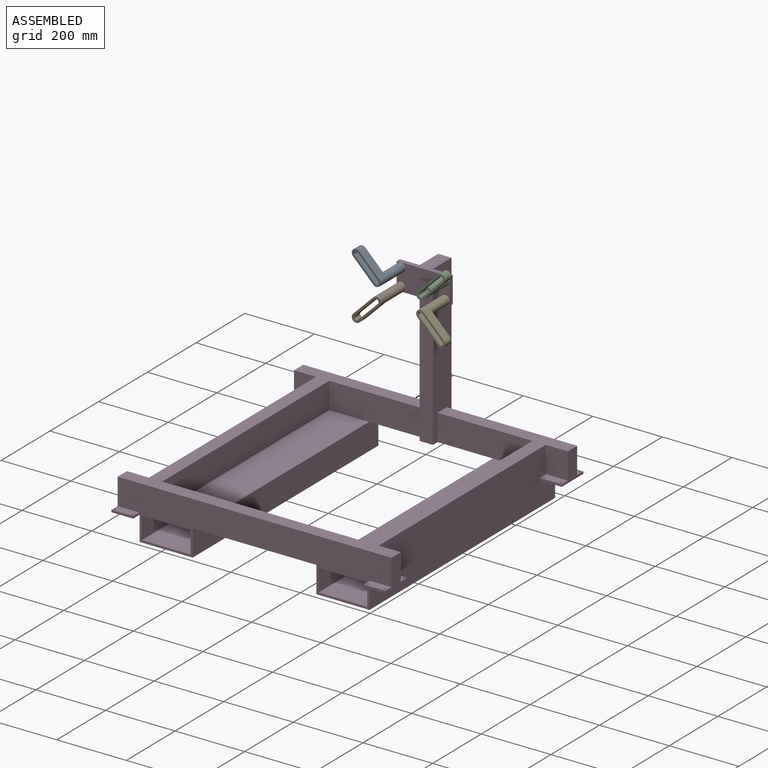
[diagram: assembled view]
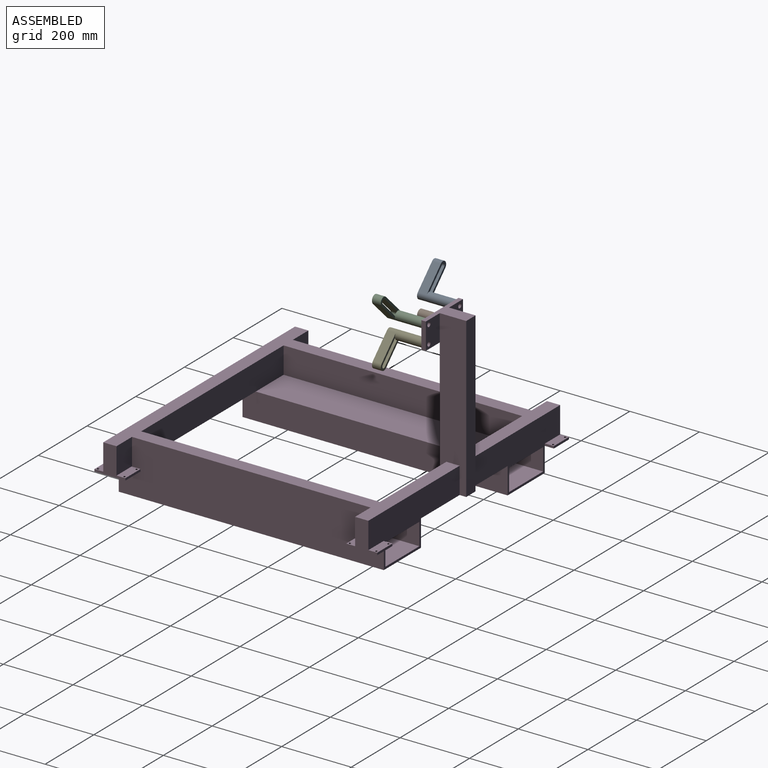
[diagram: assembled view, second angle]
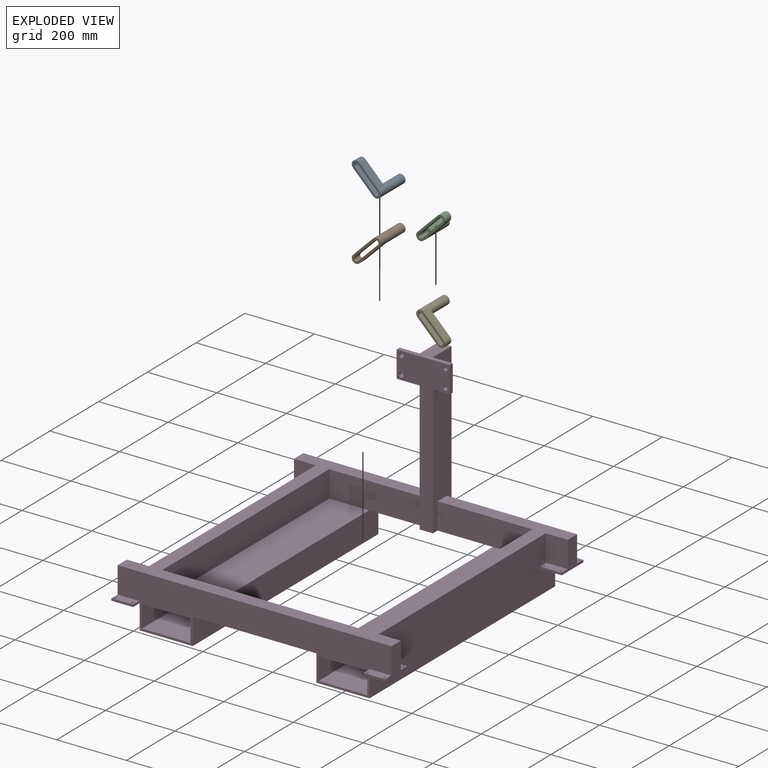
[diagram: exploded view]
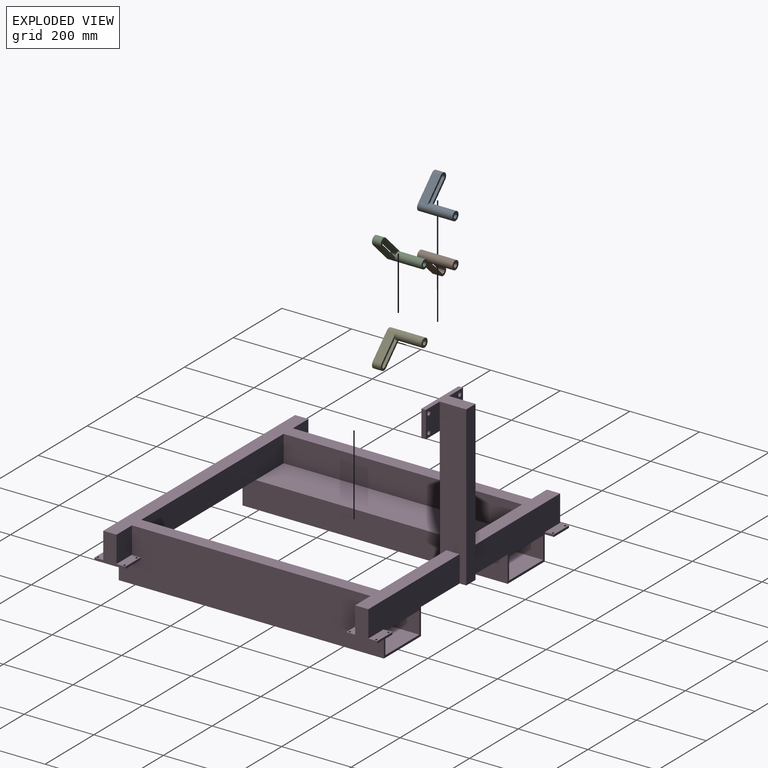
[diagram: exploded view, second angle]
ASSEMBLY  parts=5 mates=4
PART A: 14 faces, bbox 107.4x101.6x25.4 mm
  f0: plane 12.7x12.7mm, normal (0,-1,0), area 91mm2, adj f1,f2,f9,f11
  f1: cylinder r=6.35mm len=101.6mm, axis (0,-1,0), area 3547mm2, adj f0,f3,f9,f11,f13
  f2: cylinder r=12.7mm len=76.2mm, axis (0,-1,0), area 6080.5mm2, adj f0,f3,f4,f5
  f3: plane 25.4x25.4mm, normal (0,1,0), area 380mm2, adj f1,f2
  f4: plane 25.4x14.3mm, normal (0,-1,0), area 4.3mm2, adj f2,f6,f7,f8
  f5: plane 93.05x25.2mm, normal (0,1,0), area 1112.5mm2, adj f2,f6,f8,f9,f10,f11,f12
  f6: plane 82.05x25.4mm, normal (0,0,1), area 2084.1mm2, adj f4,f5,f7,f12,f13
  f7: cylinder r=12.6mm len=25.4mm, axis (0,1,0), area 1005.3mm2, adj f4,f6,f8,f13
  f8: plane 82.05x25.4mm, normal (0,0,-1), area 2084.1mm2, adj f4,f5,f7,f12,f13
  f9: plane 82.05x25.4mm, normal (0,0,-1), area 2084.1mm2, adj f0,f1,f5,f10,f13
  f10: cylinder r=6.35mm len=25.4mm, axis (0,1,0), area 506.7mm2, adj f5,f9,f11,f13
  f11: plane 82.05x25.4mm, normal (0,0,1), area 2084.1mm2, adj f0,f1,f5,f10,f13
  f12: cylinder r=12.6mm len=25.4mm, axis (0,1,0), area 1005.3mm2, adj f5,f6,f8,f13
  f13: plane 107.25x25.2mm, normal (0,-1,0), area 1397.3mm2, adj f1,f6,f7,f8,f9,f10,f11,f12
PART B: same geometry as A
PART C: same geometry as A
PART D: 94 faces, bbox 787.4x812.8x533.4 mm
  f0: plane 381x38.1mm, normal (0,-1,0), area 14516.1mm2, adj f6,f80,f81,f88
  f1: plane 374.65x152.4mm, normal (0,1,0), area 31290.3mm2, adj f3,f6,f9,f19,f25,f56,f70,f71
  f2: plane 273.05x76.2mm, normal (0,-1,0), area 20806.4mm2, adj f3,f6,f23,f69,f80
  f3: plane 787.4x762mm, normal (0,0,1), area 110806.2mm2, adj f1,f2,f10,f11,f12,f13,f14,f15
  f4: plane 38.1x1.27mm, normal (0,0,-1), area 48.4mm2, adj f16,f18,f19,f39
  f5: plane 355.6x38.1mm, normal (0,0,-1), area 13548.4mm2, adj f16,f24,f67,f70
  f6: plane 355.6x76.2mm, normal (0,0,-1), area 15000mm2, adj f0,f1,f2,f10,f22,f67,f70,f80
  f7: plane 38.1x1.27mm, normal (0,0,-1), area 48.4mm2, adj f10,f12,f13,f48
  f8: plane 38.1x1.27mm, normal (0,0,-1), area 48.4mm2, adj f13,f14,f16,f29
  f9: plane 38.1x1.27mm, normal (0,0,-1), area 48.4mm2, adj f1,f19,f20,f60
  f10: plane 374.65x152.4mm, normal (0,1,0), area 31290.3mm2, adj f3,f6,f7,f11,f13,f55,f67,f68
  f11: plane 88.9x82.55mm, normal (-1,0,0), area 3467.7mm2, adj f3,f10,f12,f46,f47,f50,f54,f55
  f12: plane 76.2x63.5mm, normal (0,-1,0), area 4838.7mm2, adj f3,f7,f11,f13,f46
  f13: plane 762x152.4mm, normal (-1,0,0), area 110322.4mm2, adj f3,f7,f8,f10,f12,f14,f16,f68
  f14: plane 76.2x63.5mm, normal (0,1,0), area 4838.7mm2, adj f3,f8,f13,f15,f27
  f15: plane 88.9x82.55mm, normal (-1,0,0), area 3467.7mm2, adj f3,f14,f16,f26,f27,f28,f30,f35
  f16: plane 787.4x152.4mm, normal (0,-1,0), area 65483.7mm2, adj f3,f4,f5,f8,f13,f15,f17,f19
  f17: plane 88.9x82.55mm, normal (1,0,0), area 3467.7mm2, adj f3,f16,f18,f36,f37,f38,f43,f45
  f18: plane 76.2x63.5mm, normal (0,1,0), area 4838.7mm2, adj f3,f4,f17,f19,f37
  f19: plane 762x152.4mm, normal (1,0,0), area 110322.4mm2, adj f1,f3,f4,f9,f16,f18,f20,f71
  f20: plane 76.2x63.5mm, normal (0,-1,0), area 4838.7mm2, adj f3,f9,f19,f25,f65
  f21: plane 685.8x76.2mm, normal (1,0,0), area 52258mm2, adj f3,f22,f24,f66
  f22: plane 273.05x76.2mm, normal (0,-1,0), area 20806.4mm2, adj f3,f6,f21,f66,f81
  f23: plane 685.8x76.2mm, normal (-1,0,0), area 52258mm2, adj f2,f3,f24,f69
  f24: plane 584.2x76.2mm, normal (0,1,0), area 44516mm2, adj f3,f5,f21,f23,f66,f69
  f25: plane 88.9x82.55mm, normal (1,0,0), area 3467.7mm2, adj f1,f3,f20,f56,f57,f58,f64,f65
  f26: plane 62.23x25.4mm, normal (0,0,1), area 1517.3mm2, adj f15,f16,f29,f30,f32,f33
  f27: plane 62.23x25.4mm, normal (0,0,1), area 1517.3mm2, adj f14,f15,f28,f29,f31,f34
  f28: plane 62.23x6.35mm, normal (0,1,0), area 395.2mm2, adj f15,f27,f29,f35
  f29: plane 88.9x6.35mm, normal (1,0,0), area 564.5mm2, adj f8,f26,f27,f28,f30,f35
  f30: plane 62.23x6.35mm, normal (0,-1,0), area 395.2mm2, adj f15,f26,f29,f35
  f31: cylinder r=3.17mm len=6.35mm, axis (0,0,1), area 126.7mm2, adj f27,f35
  f32: cylinder r=3.17mm len=6.35mm, axis (0,0,1), area 126.7mm2, adj f26,f35
  f33: cylinder r=3.17mm len=6.35mm, axis (0,0,1), area 126.7mm2, adj f26,f35
  f34: cylinder r=3.17mm len=6.35mm, axis (0,0,1), area 126.7mm2, adj f27,f35
  f35: plane 88.9x62.23mm, normal (0,0,-1), area 5405.6mm2, adj f15,f28,f29,f30,f31,f32,f33,f34
  f36: plane 62.23x25.4mm, normal (0,0,1), area 1517.3mm2, adj f16,f17,f38,f39,f41,f42
  f37: plane 62.23x25.4mm, normal (0,0,1), area 1517.3mm2, adj f17,f18,f39,f40,f43,f44
  f38: plane 62.23x6.35mm, normal (0,-1,0), area 395.2mm2, adj f17,f36,f39,f45
  f39: plane 88.9x6.35mm, normal (-1,0,0), area 564.5mm2, adj f4,f36,f37,f38,f43,f45
  f40: cylinder r=3.17mm len=6.35mm, axis (0,0,1), area 126.7mm2, adj f37,f45
  f41: cylinder r=3.17mm len=6.35mm, axis (0,0,1), area 126.7mm2, adj f36,f45
  f42: cylinder r=3.17mm len=6.35mm, axis (0,0,1), area 126.7mm2, adj f36,f45
  f43: plane 62.23x6.35mm, normal (0,1,0), area 395.2mm2, adj f17,f37,f39,f45
  f44: cylinder r=3.17mm len=6.35mm, axis (0,0,1), area 126.7mm2, adj f37,f45
  f45: plane 88.9x62.23mm, normal (0,0,-1), area 5405.6mm2, adj f17,f38,f39,f40,f41,f42,f43,f44
  f46: plane 62.23x25.4mm, normal (0,0,1), area 1517.3mm2, adj f11,f12,f48,f50,f51,f52
  f47: plane 62.23x6.35mm, normal (0,1,0), area 395.2mm2, adj f11,f48,f54,f55
  f48: plane 88.9x6.35mm, normal (1,0,0), area 564.5mm2, adj f7,f46,f47,f50,f54,f55
  f49: cylinder r=3.17mm len=6.35mm, axis (0,0,1), area 126.7mm2, adj f54,f55
  f50: plane 62.23x6.35mm, normal (0,-1,0), area 395.2mm2, adj f11,f46,f48,f54
  f51: cylinder r=3.17mm len=6.35mm, axis (0,0,1), area 126.7mm2, adj f46,f54
  f52: cylinder r=3.17mm len=6.35mm, axis (0,0,1), area 126.7mm2, adj f46,f54
  f53: cylinder r=3.17mm len=6.35mm, axis (0,0,1), area 126.7mm2, adj f54,f55
  f54: plane 88.9x62.23mm, normal (0,0,-1), area 5405.6mm2, adj f11,f47,f48,f49,f50,f51,f52,f53
  f55: plane 62.23x25.4mm, normal (0,0,1), area 1517.3mm2, adj f10,f11,f47,f48,f49,f53
  f56: plane 62.23x25.4mm, normal (0,0,1), area 1517.3mm2, adj f1,f25,f57,f60,f61,f62
  f57: plane 62.23x6.35mm, normal (0,1,0), area 395.2mm2, adj f25,f56,f60,f64
  f58: plane 62.23x6.35mm, normal (0,-1,0), area 395.2mm2, adj f25,f60,f64,f65
  f59: cylinder r=3.17mm len=6.35mm, axis (0,0,1), area 126.7mm2, adj f64,f65
  f60: plane 88.9x6.35mm, normal (-1,0,0), area 564.5mm2, adj f9,f56,f57,f58,f64,f65
  f61: cylinder r=3.17mm len=6.35mm, axis (0,0,1), area 126.7mm2, adj f56,f64
  f62: cylinder r=3.17mm len=6.35mm, axis (0,0,1), area 126.7mm2, adj f56,f64
  f63: cylinder r=3.17mm len=6.35mm, axis (0,0,1), area 126.7mm2, adj f64,f65
  f64: plane 88.9x62.23mm, normal (0,0,-1), area 5405.6mm2, adj f25,f57,f58,f59,f60,f61,f62,f63
  f65: plane 62.23x25.4mm, normal (0,0,1), area 1517.3mm2, adj f20,f25,f58,f59,f60,f63
  f66: plane 685.8x114.3mm, normal (0,0,1), area 78386.9mm2, adj f21,f22,f24,f67
  f67: plane 762x76.2mm, normal (1,0,0), area 58064.4mm2, adj f5,f6,f10,f16,f66,f68
  f68: plane 762x152.4mm, normal (0,0,-1), area 116128.8mm2, adj f10,f13,f16,f67
  f69: plane 685.8x114.3mm, normal (0,0,1), area 78386.9mm2, adj f2,f23,f24,f70
  f70: plane 762x76.2mm, normal (-1,0,0), area 58064.4mm2, adj f1,f5,f6,f16,f69,f71
  f71: plane 762x152.4mm, normal (0,0,-1), area 116128.8mm2, adj f1,f16,f19,f70
  f72: plane 762x139.7mm, normal (0,0,1), area 106451.4mm2, adj f1,f16,f73,f74
  f73: plane 762x63.5mm, normal (1,0,0), area 48387mm2, adj f1,f16,f72,f75
  f74: plane 762x63.5mm, normal (-1,0,0), area 48387mm2, adj f1,f16,f72,f75
  f75: plane 762x139.7mm, normal (0,0,-1), area 106451.4mm2, adj f1,f16,f73,f74
  f76: plane 762x63.5mm, normal (-1,0,0), area 48387mm2, adj f10,f16,f77,f78
  f77: plane 762x139.7mm, normal (0,0,1), area 106451.4mm2, adj f10,f16,f76,f79
  f78: plane 762x139.7mm, normal (0,0,-1), area 106451.4mm2, adj f10,f16,f76,f79
  f79: plane 762x63.5mm, normal (1,0,0), area 48387mm2, adj f10,f16,f77,f78
  f80: plane 457.2x76.2mm, normal (1,0,0), area 31935.4mm2, adj f0,f1,f2,f3,f6,f82,f83,f93
  f81: plane 457.2x76.2mm, normal (-1,0,0), area 31935.4mm2, adj f0,f3,f6,f10,f22,f82,f83,f84
  f82: plane 457.2x38.1mm, normal (0,1,0), area 17419.3mm2, adj f6,f80,f81,f83
  f83: plane 152.4x88.9mm, normal (0,0,1), area 4838.7mm2, adj f80,f81,f82,f84,f85,f86,f92,f93
  f84: plane 76.2x57.15mm, normal (0,1,0), area 4101.5mm2, adj f81,f83,f86,f87,f88,f91
  f85: plane 76.2x12.7mm, normal (1,0,0), area 967.7mm2, adj f83,f88,f92,f93
  f86: plane 76.2x12.7mm, normal (-1,0,0), area 967.7mm2, adj f83,f84,f88,f92
  f87: cylinder r=6.35mm len=12.7mm, axis (0,1,0), area 506.7mm2, adj f84,f92
  f88: plane 152.4x12.7mm, normal (0,0,-1), area 1935.5mm2, adj f0,f84,f85,f86,f92,f93
  f89: cylinder r=6.35mm len=12.7mm, axis (0,1,0), area 506.7mm2, adj f92,f93
  f90: cylinder r=6.35mm len=12.7mm, axis (0,1,0), area 506.7mm2, adj f92,f93
  f91: cylinder r=6.35mm len=12.7mm, axis (0,1,0), area 506.7mm2, adj f84,f92
  f92: plane 152.4x76.2mm, normal (0,-1,0), area 11106.2mm2, adj f83,f85,f86,f87,f88,f89,f90,f91
  f93: plane 76.2x57.15mm, normal (0,1,0), area 4101.5mm2, adj f80,f83,f85,f88,f89,f90
PART E: same geometry as A
PLACE A rot(axis=(0,-1,0),135deg) t=(-899.36,-6.49,563.89)mm
PLACE B rot(axis=(0,1,0),135deg) t=(-899.36,-6.49,513.09)mm
PLACE C rot(axis=(0,-1,0),45deg) t=(-772.36,-6.49,563.89)mm
PLACE D t=(-835.86,-241.44,119.39)mm
PLACE E rot(axis=(0,1,0),45deg) t=(-772.36,-6.49,513.09)mm
MATE revolute D.f90 <-> E.f2  axis (0,-1,0) through (-772.36,69.71,513.09)mm
MATE revolute D.f91 <-> A.f1  axis (0,1,0) through (-899.36,69.71,563.89)mm
MATE revolute D.f89 <-> C.f1  axis (0,-1,0) through (-772.36,69.71,563.89)mm
MATE revolute D.f87 <-> B.f1  axis (0,-1,0) through (-899.36,69.71,513.09)mm
